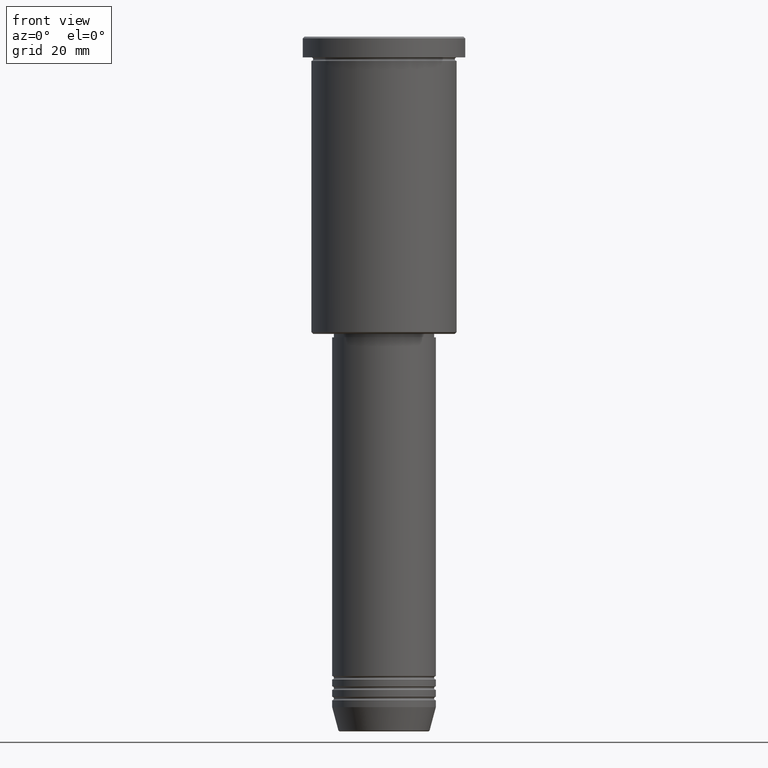
[diagram: clean part render]
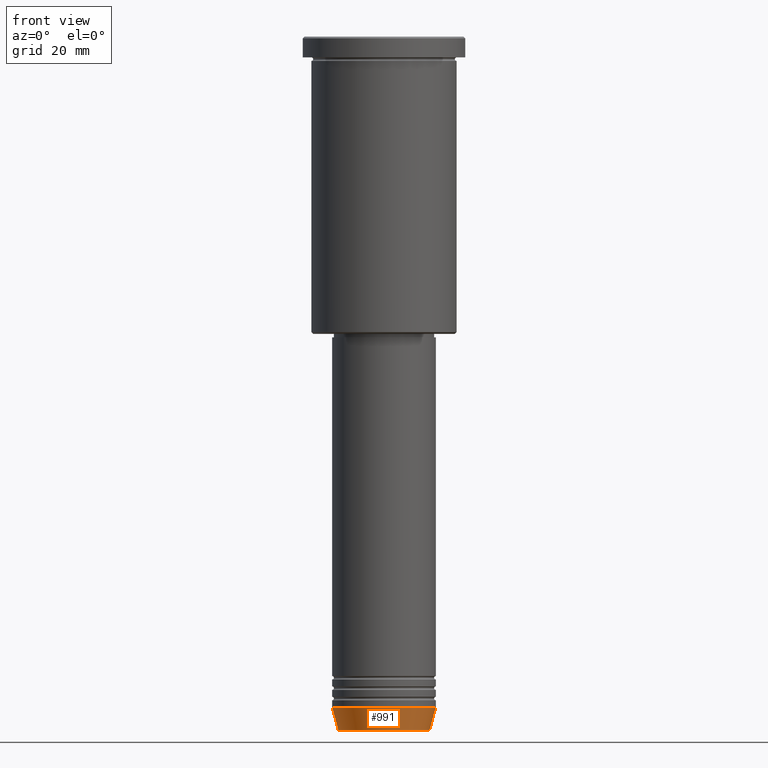
[diagram: same view with one face highlighted and labeled with its STEP entity id]
A machine part, front view. The second image highlights one B-rep face of the part: STEP entity #991.
In plain terms, the highlighted conical surface has half-angle 15 deg.
Its self-contained STEP definition (entity closure, byte-faithful):
#17 = DIRECTION ( 'NONE',  ( -0.2588190451025213501, 3.169619151431772337E-17, 0.9659258262890680902 ) ) ;
#87 = CARTESIAN_POINT ( 'NONE',  ( 15.00000000000000000, 0.000000000000000000, -194.0000000000000000 ) ) ;
#95 = ORIENTED_EDGE ( 'NONE', *, *, #776, .F. ) ;
#114 = AXIS2_PLACEMENT_3D ( 'NONE', #968, #252, #539 ) ;
#151 = VECTOR ( 'NONE', #17, 1000.000000000000000 ) ;
#164 = FACE_OUTER_BOUND ( 'NONE', #818, .T. ) ;
#226 = LINE ( 'NONE', #417, #151 ) ;
#228 = ORIENTED_EDGE ( 'NONE', *, *, #254, .T. ) ;
#252 = DIRECTION ( 'NONE',  ( -0.000000000000000000, -0.000000000000000000, 1.000000000000000000 ) ) ;
#254 = EDGE_CURVE ( 'NONE', #617, #1056, #610, .T. ) ;
#272 = ORIENTED_EDGE ( 'NONE', *, *, #615, .T. ) ;
#404 = CARTESIAN_POINT ( 'NONE',  ( 13.22365507213719482, 0.000000000000000000, -200.6294095225512706 ) ) ;
#409 = DIRECTION ( 'NONE',  ( -0.000000000000000000, -0.000000000000000000, 1.000000000000000000 ) ) ;
#417 = CARTESIAN_POINT ( 'NONE',  ( -15.00000000000000000, 1.836970198721029589E-15, -194.0000000000000000 ) ) ;
#438 = ORIENTED_EDGE ( 'NONE', *, *, #499, .F. ) ;
#439 = AXIS2_PLACEMENT_3D ( 'NONE', #729, #929, #735 ) ;
#491 = CARTESIAN_POINT ( 'NONE',  ( 0.000000000000000000, 0.000000000000000000, -194.0000000000000000 ) ) ;
#499 = EDGE_CURVE ( 'NONE', #925, #681, #851, .T. ) ;
#531 = DIRECTION ( 'NONE',  ( 0.2588190451025213501, 0.000000000000000000, 0.9659258262890680902 ) ) ;
#539 = DIRECTION ( 'NONE',  ( 1.000000000000000000, 0.000000000000000000, 0.000000000000000000 ) ) ;
#541 = VECTOR ( 'NONE', #531, 1000.000000000000000 ) ;
#610 = CIRCLE ( 'NONE', #439, 13.22365507213719482 ) ;
#615 = EDGE_CURVE ( 'NONE', #1056, #681, #971, .T. ) ;
#617 = VERTEX_POINT ( 'NONE', #881 ) ;
#634 = CONICAL_SURFACE ( 'NONE', #114, 15.00000000000000000, 0.2617993877991500740 ) ;
#681 = VERTEX_POINT ( 'NONE', #87 ) ;
#695 = CARTESIAN_POINT ( 'NONE',  ( -15.00000000000000000, 1.836970198721029589E-15, -194.0000000000000000 ) ) ;
#729 = CARTESIAN_POINT ( 'NONE',  ( 0.000000000000000000, 0.000000000000000000, -200.6294095225512706 ) ) ;
#735 = DIRECTION ( 'NONE',  ( 1.000000000000000000, 0.000000000000000000, 0.000000000000000000 ) ) ;
#759 = AXIS2_PLACEMENT_3D ( 'NONE', #491, #409, #1126 ) ;
#776 = EDGE_CURVE ( 'NONE', #617, #925, #226, .T. ) ;
#818 = EDGE_LOOP ( 'NONE', ( #95, #228, #272, #438 ) ) ;
#851 = CIRCLE ( 'NONE', #759, 15.00000000000000000 ) ;
#881 = CARTESIAN_POINT ( 'NONE',  ( -13.22365507213719660, 1.728200442216588780E-15, -200.6294095225512706 ) ) ;
#925 = VERTEX_POINT ( 'NONE', #695 ) ;
#929 = DIRECTION ( 'NONE',  ( -0.000000000000000000, -0.000000000000000000, 1.000000000000000000 ) ) ;
#968 = CARTESIAN_POINT ( 'NONE',  ( 0.000000000000000000, 0.000000000000000000, -194.0000000000000000 ) ) ;
#971 = LINE ( 'NONE', #1070, #541 ) ;
#991 = ADVANCED_FACE ( 'NONE', ( #164 ), #634, .T. ) ;
#1056 = VERTEX_POINT ( 'NONE', #404 ) ;
#1070 = CARTESIAN_POINT ( 'NONE',  ( 15.00000000000000000, 0.000000000000000000, -194.0000000000000000 ) ) ;
#1126 = DIRECTION ( 'NONE',  ( 1.000000000000000000, 0.000000000000000000, 0.000000000000000000 ) ) ;